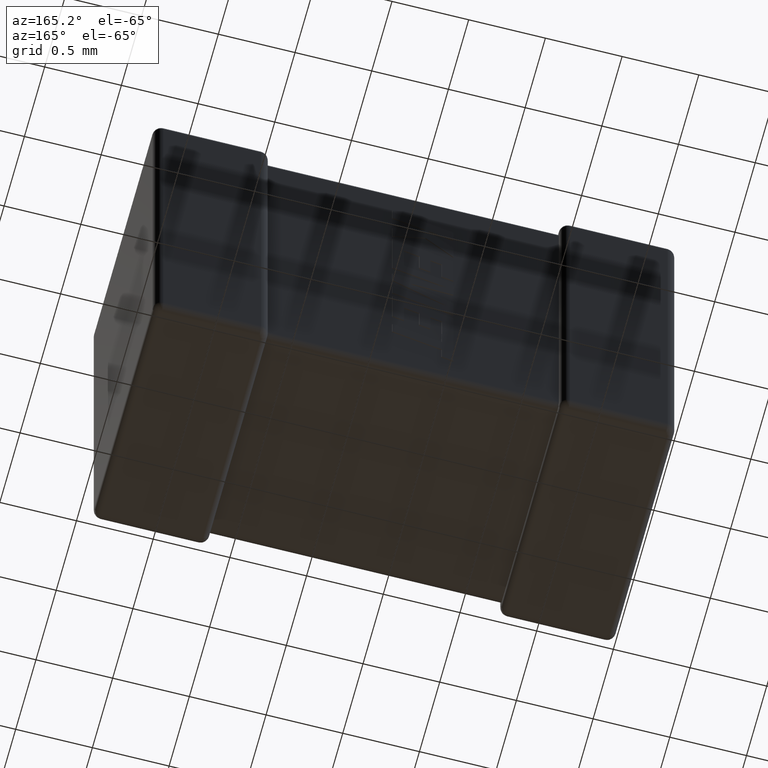
[diagram: clean part render]
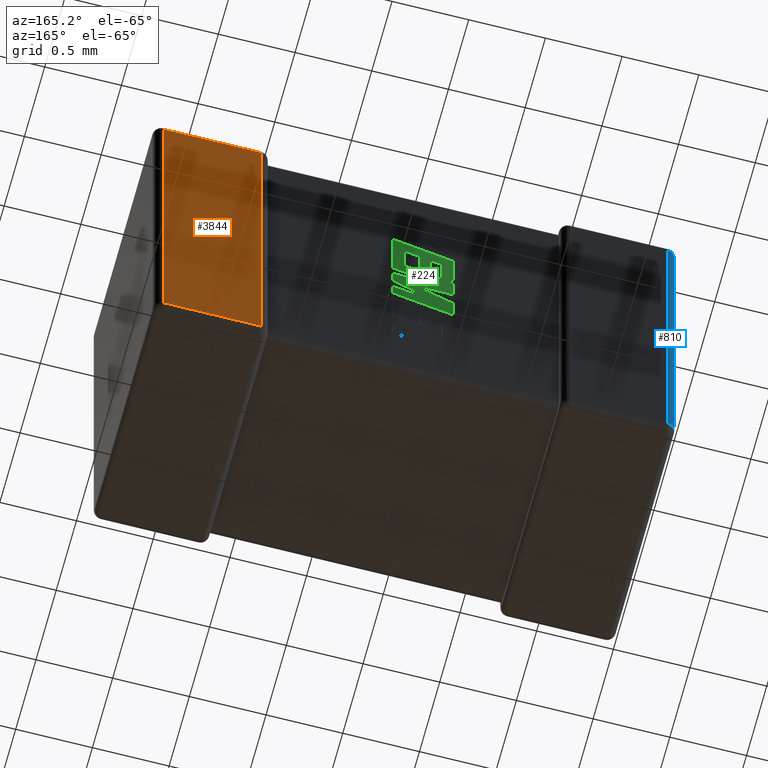
[diagram: same view with three faces highlighted in distinct colors, each labeled with its STEP entity id]
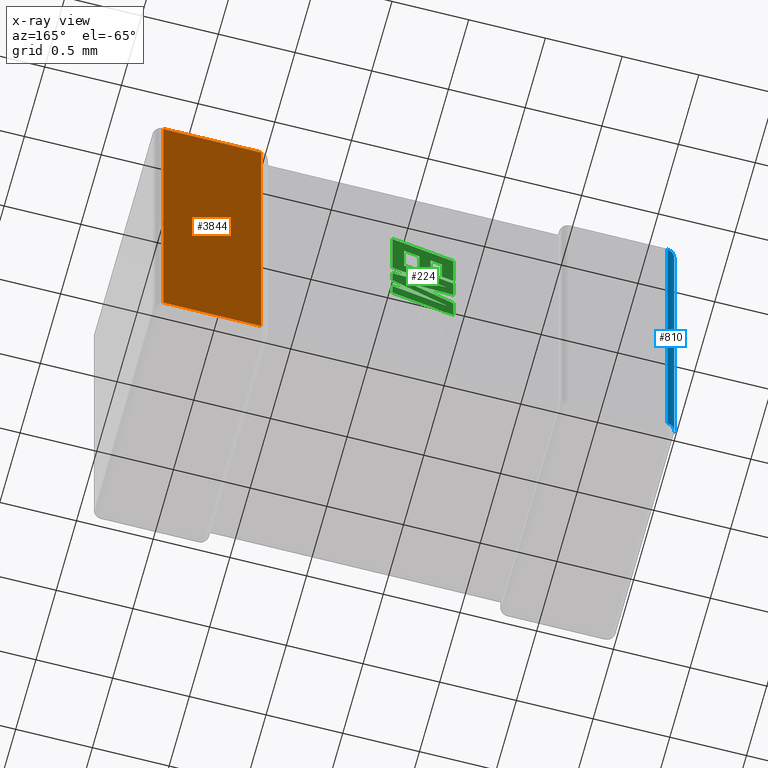
[diagram: x-ray of the same camera — body ghosted, the three highlighted faces saturated]
A machine part, auxiliary view with three faces highlighted in distinct colors.
The next image is the same camera in x-ray (body ghosted, the three faces saturated) — at least one of them is partly hidden behind the body in this view.
Their STEP definitions:

[orange] entity #3844 — the highlighted planar face has unit normal (0, -1, 0).
#448 = VECTOR ( 'NONE', #3174, 1000.000000000000000 ) ;
#488 = VECTOR ( 'NONE', #2281, 1000.000000000000000 ) ;
#535 = ORIENTED_EDGE ( 'NONE', *, *, #3697, .T. ) ;
#578 = ORIENTED_EDGE ( 'NONE', *, *, #4361, .T. ) ;
#594 = EDGE_LOOP ( 'NONE', ( #1127, #535, #640, #578 ) ) ;
#640 = ORIENTED_EDGE ( 'NONE', *, *, #3153, .T. ) ;
#685 = CARTESIAN_POINT ( 'NONE',  ( 2.706160000000000565, 1.549999999999999822, 0.000000000000000000 ) ) ;
#1005 = DIRECTION ( 'NONE',  ( -1.000000000000000000, 0.000000000000000000, 0.000000000000000000 ) ) ;
#1112 = LINE ( 'NONE', #685, #3146 ) ;
#1127 = ORIENTED_EDGE ( 'NONE', *, *, #1570, .T. ) ;
#1366 = VERTEX_POINT ( 'NONE', #4028 ) ;
#1472 = DIRECTION ( 'NONE',  ( 0.000000000000000000, -1.000000000000000000, 0.000000000000000000 ) ) ;
#1480 = AXIS2_PLACEMENT_3D ( 'NONE', #2906, #1472, #1726 ) ;
#1521 = LINE ( 'NONE', #4066, #488 ) ;
#1570 = EDGE_CURVE ( 'NONE', #3899, #1366, #2858, .T. ) ;
#1696 = VECTOR ( 'NONE', #1005, 1000.000000000000000 ) ;
#1726 = DIRECTION ( 'NONE',  ( 0.000000000000000000, -0.000000000000000000, -1.000000000000000000 ) ) ;
#2264 = LINE ( 'NONE', #3734, #1696 ) ;
#2281 = DIRECTION ( 'NONE',  ( -0.000000000000000000, -0.000000000000000000, -1.000000000000000000 ) ) ;
#2444 = DIRECTION ( 'NONE',  ( -0.000000000000000000, 0.000000000000000000, 1.000000000000000000 ) ) ;
#2450 = CARTESIAN_POINT ( 'NONE',  ( 2.706160000000000565, 1.549999999999999822, -0.05616000000000000159 ) ) ;
#2585 = VERTEX_POINT ( 'NONE', #2955 ) ;
#2858 = LINE ( 'NONE', #3543, #448 ) ;
#2893 = CARTESIAN_POINT ( 'NONE',  ( 2.706160000000000565, 1.549999999999999822, -2.643839999999999968 ) ) ;
#2906 = CARTESIAN_POINT ( 'NONE',  ( 3.400000000000000355, 1.549999999999999822, 0.000000000000000000 ) ) ;
#2955 = CARTESIAN_POINT ( 'NONE',  ( 3.343840000000000146, 1.549999999999999822, -2.643839999999999968 ) ) ;
#3104 = PLANE ( 'NONE',  #1480 ) ;
#3146 = VECTOR ( 'NONE', #2444, 1000.000000000000000 ) ;
#3153 = EDGE_CURVE ( 'NONE', #2585, #4127, #2264, .T. ) ;
#3174 = DIRECTION ( 'NONE',  ( 1.000000000000000000, -0.000000000000000000, -0.000000000000000000 ) ) ;
#3543 = CARTESIAN_POINT ( 'NONE',  ( 3.400000000000000355, 1.549999999999999822, -0.05616000000000000159 ) ) ;
#3697 = EDGE_CURVE ( 'NONE', #1366, #2585, #1521, .T. ) ;
#3734 = CARTESIAN_POINT ( 'NONE',  ( 3.400000000000000355, 1.549999999999999822, -2.643839999999999968 ) ) ;
#3844 = ADVANCED_FACE ( 'NONE', ( #4545 ), #3104, .F. ) ;
#3899 = VERTEX_POINT ( 'NONE', #2450 ) ;
#4028 = CARTESIAN_POINT ( 'NONE',  ( 3.343840000000000146, 1.549999999999999822, -0.05616000000000000159 ) ) ;
#4066 = CARTESIAN_POINT ( 'NONE',  ( 3.343840000000000146, 1.549999999999999822, 0.000000000000000000 ) ) ;
#4127 = VERTEX_POINT ( 'NONE', #2893 ) ;
#4361 = EDGE_CURVE ( 'NONE', #4127, #3899, #1112, .T. ) ;
#4545 = FACE_OUTER_BOUND ( 'NONE', #594, .T. ) ;

[blue] entity #810 — the highlighted cylindrical surface (edge-blend (fillet) strip) has radius 0.0562 mm, axis along (0, 0, -1).
#307 = CARTESIAN_POINT ( 'NONE',  ( 0.05615999999999997383, 1.549999999999999822, -2.643839999999999968 ) ) ;
#577 = EDGE_CURVE ( 'NONE', #4616, #2724, #1618, .T. ) ;
#580 = DIRECTION ( 'NONE',  ( -0.000000000000000000, 0.000000000000000000, -1.000000000000000000 ) ) ;
#689 = VERTEX_POINT ( 'NONE', #3541 ) ;
#779 = CIRCLE ( 'NONE', #3579, 0.05616000000000000159 ) ;
#810 = ADVANCED_FACE ( 'NONE', ( #4468 ), #1190, .T. ) ;
#812 = CARTESIAN_POINT ( 'NONE',  ( 0.000000000000000000, 1.493839999999999835, -0.05616000000000000159 ) ) ;
#828 = CARTESIAN_POINT ( 'NONE',  ( 0.05615999999999997383, 1.493839999999999835, 0.000000000000000000 ) ) ;
#923 = DIRECTION ( 'NONE',  ( 0.000000000000000000, -0.000000000000000000, 1.000000000000000000 ) ) ;
#934 = VECTOR ( 'NONE', #580, 1000.000000000000000 ) ;
#1100 = CARTESIAN_POINT ( 'NONE',  ( 0.05615999999999997383, 1.549999999999999822, 0.000000000000000000 ) ) ;
#1190 = CYLINDRICAL_SURFACE ( 'NONE', #2058, 0.05616000000000000159 ) ;
#1258 = DIRECTION ( 'NONE',  ( 0.000000000000000000, 0.000000000000000000, -1.000000000000000000 ) ) ;
#1618 = LINE ( 'NONE', #3083, #934 ) ;
#1683 = VECTOR ( 'NONE', #3252, 1000.000000000000000 ) ;
#1715 = EDGE_CURVE ( 'NONE', #689, #4616, #779, .T. ) ;
#2019 = ORIENTED_EDGE ( 'NONE', *, *, #2880, .F. ) ;
#2058 = AXIS2_PLACEMENT_3D ( 'NONE', #828, #2250, #2633 ) ;
#2150 = LINE ( 'NONE', #1100, #1683 ) ;
#2250 = DIRECTION ( 'NONE',  ( 0.000000000000000000, 0.000000000000000000, -1.000000000000000000 ) ) ;
#2308 = CARTESIAN_POINT ( 'NONE',  ( 0.05615999999999997383, 1.493839999999999835, -0.05616000000000000159 ) ) ;
#2399 = ORIENTED_EDGE ( 'NONE', *, *, #1715, .F. ) ;
#2559 = EDGE_CURVE ( 'NONE', #3876, #689, #2150, .T. ) ;
#2633 = DIRECTION ( 'NONE',  ( -1.000000000000000000, 0.000000000000000000, 0.000000000000000000 ) ) ;
#2724 = VERTEX_POINT ( 'NONE', #3776 ) ;
#2880 = EDGE_CURVE ( 'NONE', #2724, #3876, #3944, .T. ) ;
#3003 = DIRECTION ( 'NONE',  ( 1.000000000000000000, 0.000000000000000000, 0.000000000000000000 ) ) ;
#3018 = DIRECTION ( 'NONE',  ( -1.000000000000000000, 0.000000000000000000, 0.000000000000000000 ) ) ;
#3083 = CARTESIAN_POINT ( 'NONE',  ( 0.000000000000000000, 1.493839999999999835, -2.700000000000000178 ) ) ;
#3102 = EDGE_LOOP ( 'NONE', ( #2019, #3554, #2399, #3489 ) ) ;
#3229 = CARTESIAN_POINT ( 'NONE',  ( 0.05616000000000000159, 1.493839999999999835, -2.643839999999999968 ) ) ;
#3252 = DIRECTION ( 'NONE',  ( 0.000000000000000000, 0.000000000000000000, 1.000000000000000000 ) ) ;
#3489 = ORIENTED_EDGE ( 'NONE', *, *, #2559, .F. ) ;
#3541 = CARTESIAN_POINT ( 'NONE',  ( 0.05615999999999997383, 1.549999999999999822, -0.05616000000000000159 ) ) ;
#3554 = ORIENTED_EDGE ( 'NONE', *, *, #577, .F. ) ;
#3579 = AXIS2_PLACEMENT_3D ( 'NONE', #2308, #923, #3003 ) ;
#3776 = CARTESIAN_POINT ( 'NONE',  ( 0.000000000000000000, 1.493839999999999835, -2.643839999999999968 ) ) ;
#3876 = VERTEX_POINT ( 'NONE', #307 ) ;
#3944 = CIRCLE ( 'NONE', #4245, 0.05616000000000000159 ) ;
#4245 = AXIS2_PLACEMENT_3D ( 'NONE', #3229, #1258, #3018 ) ;
#4468 = FACE_OUTER_BOUND ( 'NONE', #3102, .T. ) ;
#4616 = VERTEX_POINT ( 'NONE', #812 ) ;

[green] entity #224 — the highlighted planar face has unit normal (0, -1, 0).
#3 = DIRECTION ( 'NONE',  ( 0.000000000000000000, 0.000000000000000000, 1.000000000000000000 ) ) ;
#15 = DIRECTION ( 'NONE',  ( 0.000000000000000000, 0.000000000000000000, -1.000000000000000000 ) ) ;
#46 = LINE ( 'NONE', #2936, #371 ) ;
#75 = CARTESIAN_POINT ( 'NONE',  ( 1.514623772849683414, 1.498839999999999728, -0.9688634990597322361 ) ) ;
#102 = ORIENTED_EDGE ( 'NONE', *, *, #2918, .T. ) ;
#113 = VECTOR ( 'NONE', #1181, 1000.000000000000227 ) ;
#122 = ORIENTED_EDGE ( 'NONE', *, *, #2349, .T. ) ;
#152 = EDGE_CURVE ( 'NONE', #2822, #3125, #2195, .T. ) ;
#159 = LINE ( 'NONE', #438, #1186 ) ;
#197 = VERTEX_POINT ( 'NONE', #383 ) ;
#204 = DIRECTION ( 'NONE',  ( 0.000000000000000000, -1.000000000000000000, 0.000000000000000000 ) ) ;
#224 = ADVANCED_FACE ( 'NONE', ( #1962 ), #2335, .F. ) ;
#226 = CARTESIAN_POINT ( 'NONE',  ( 1.836000000000006738, 1.498839999999999728, -1.378798892409895727 ) ) ;
#236 = EDGE_CURVE ( 'NONE', #3738, #329, #886, .T. ) ;
#249 = DIRECTION ( 'NONE',  ( 0.9610029908221285888, 0.000000000000000000, 0.2765379750249931101 ) ) ;
#250 = VECTOR ( 'NONE', #2419, 1000.000000000000227 ) ;
#270 = LINE ( 'NONE', #976, #1309 ) ;
#313 = EDGE_CURVE ( 'NONE', #3606, #2486, #3910, .T. ) ;
#329 = VERTEX_POINT ( 'NONE', #2408 ) ;
#334 = CARTESIAN_POINT ( 'NONE',  ( 1.588452647486523484, 1.498839999999999728, -0.9473805662053309540 ) ) ;
#371 = VECTOR ( 'NONE', #4435, 1000.000000000000000 ) ;
#380 = CARTESIAN_POINT ( 'NONE',  ( 1.439070229052686667, 1.498839999999999728, -1.171167553601791367 ) ) ;
#382 = VERTEX_POINT ( 'NONE', #1783 ) ;
#383 = CARTESIAN_POINT ( 'NONE',  ( 1.760483870298813924, 1.498839999999999728, -0.8983367201675375169 ) ) ;
#438 = CARTESIAN_POINT ( 'NONE',  ( 1.439070229052686667, 1.498839999999999728, -1.379797255758040908 ) ) ;
#468 = AXIS2_PLACEMENT_3D ( 'NONE', #2034, #204, #2644 ) ;
#521 = DIRECTION ( 'NONE',  ( 0.000000000000000000, 0.000000000000000000, -1.000000000000000000 ) ) ;
#550 = LINE ( 'NONE', #2718, #1842 ) ;
#569 = LINE ( 'NONE', #1933, #2196 ) ;
#596 = CARTESIAN_POINT ( 'NONE',  ( 1.482623858147629869, 1.498839999999999728, -1.292788712082211244 ) ) ;
#655 = LINE ( 'NONE', #226, #3360 ) ;
#676 = CARTESIAN_POINT ( 'NONE',  ( 1.836000000000006738, 1.498839999999999728, -1.191324096069252159 ) ) ;
#682 = CARTESIAN_POINT ( 'NONE',  ( 1.439070229052686667, 1.498839999999999728, -1.210758909182688026 ) ) ;
#690 = CARTESIAN_POINT ( 'NONE',  ( 1.661831346058584735, 1.498839999999999728, -0.9264455688293166125 ) ) ;
#714 = VECTOR ( 'NONE', #3142, 1000.000000000000114 ) ;
#882 = DIRECTION ( 'NONE',  ( 0.000000000000000000, 0.000000000000000000, 1.000000000000000000 ) ) ;
#886 = LINE ( 'NONE', #4193, #1155 ) ;
#900 = ORIENTED_EDGE ( 'NONE', *, *, #1268, .T. ) ;
#912 = CARTESIAN_POINT ( 'NONE',  ( 1.836000000000006738, 1.498839999999999728, -1.565145231322540464 ) ) ;
#962 = CARTESIAN_POINT ( 'NONE',  ( 1.439070229052686667, 1.498839999999999728, -0.8779291408648176587 ) ) ;
#969 = VERTEX_POINT ( 'NONE', #3896 ) ;
#976 = CARTESIAN_POINT ( 'NONE',  ( 1.439070229052686667, 1.498839999999999728, -1.171167553601791367 ) ) ;
#990 = EDGE_CURVE ( 'NONE', #2160, #2377, #1076, .T. ) ;
#1033 = VERTEX_POINT ( 'NONE', #75 ) ;
#1064 = CARTESIAN_POINT ( 'NONE',  ( 1.514623772849683414, 1.498839999999999728, -1.149708758874154357 ) ) ;
#1070 = VECTOR ( 'NONE', #1528, 1000.000000000000000 ) ;
#1076 = LINE ( 'NONE', #2157, #1761 ) ;
#1155 = VECTOR ( 'NONE', #1286, 1000.000000000000000 ) ;
#1181 = DIRECTION ( 'NONE',  ( -0.9610674221107078363, 0.000000000000000000, -0.2763139702539094689 ) ) ;
#1186 = VECTOR ( 'NONE', #2924, 1000.000000000000000 ) ;
#1187 = VERTEX_POINT ( 'NONE', #962 ) ;
#1268 = EDGE_CURVE ( 'NONE', #2763, #1033, #2865, .T. ) ;
#1286 = DIRECTION ( 'NONE',  ( 0.000000000000000000, 0.000000000000000000, 1.000000000000000000 ) ) ;
#1297 = EDGE_LOOP ( 'NONE', ( #3046, #2020, #3464, #2489, #2411, #2592, #1930, #3132, #102, #2071, #900, #4568, #4157, #4535, #4179, #3193, #2922, #3053, #2341, #122, #3151, #4670, #2027 ) ) ;
#1309 = VECTOR ( 'NONE', #882, 1000.000000000000000 ) ;
#1313 = LINE ( 'NONE', #2036, #3882 ) ;
#1327 = EDGE_CURVE ( 'NONE', #2377, #197, #46, .T. ) ;
#1337 = CARTESIAN_POINT ( 'NONE',  ( 1.760483870298813924, 1.498839999999999728, -1.118372642657951666 ) ) ;
#1353 = DIRECTION ( 'NONE',  ( -0.9611638845408968512, 0.000000000000000000, -0.2759782365590690567 ) ) ;
#1508 = CARTESIAN_POINT ( 'NONE',  ( 1.661831346058584735, 1.498839999999999728, -1.096788329672133688 ) ) ;
#1528 = DIRECTION ( 'NONE',  ( 0.000000000000000000, 0.000000000000000000, -1.000000000000000000 ) ) ;
#1567 = VERTEX_POINT ( 'NONE', #676 ) ;
#1610 = VERTEX_POINT ( 'NONE', #3695 ) ;
#1761 = VECTOR ( 'NONE', #1805, 1000.000000000000000 ) ;
#1781 = EDGE_CURVE ( 'NONE', #382, #1610, #3537, .T. ) ;
#1783 = CARTESIAN_POINT ( 'NONE',  ( 1.482623858147629869, 1.498839999999999728, -1.292788712082211244 ) ) ;
#1805 = DIRECTION ( 'NONE',  ( 0.9610853065513847993, 0.000000000000000000, 0.2762517575166369976 ) ) ;
#1818 = EDGE_CURVE ( 'NONE', #1610, #3468, #2401, .T. ) ;
#1842 = VECTOR ( 'NONE', #1353, 1000.000000000000000 ) ;
#1862 = VERTEX_POINT ( 'NONE', #3154 ) ;
#1930 = ORIENTED_EDGE ( 'NONE', *, *, #3903, .T. ) ;
#1933 = CARTESIAN_POINT ( 'NONE',  ( 1.661831346058584735, 1.498839999999999728, -1.096788329672133688 ) ) ;
#1962 = FACE_OUTER_BOUND ( 'NONE', #1297, .T. ) ;
#2020 = ORIENTED_EDGE ( 'NONE', *, *, #3224, .T. ) ;
#2027 = ORIENTED_EDGE ( 'NONE', *, *, #2305, .T. ) ;
#2034 = CARTESIAN_POINT ( 'NONE',  ( -0.8277549025643631264, 1.498839999999999728, 0.006109351898183301016 ) ) ;
#2036 = CARTESIAN_POINT ( 'NONE',  ( 1.439070229052686667, 1.498839999999999728, -0.8779291408648176587 ) ) ;
#2071 = ORIENTED_EDGE ( 'NONE', *, *, #2183, .T. ) ;
#2106 = CARTESIAN_POINT ( 'NONE',  ( 1.836000000000006738, 1.498839999999999728, -0.7637087314246739922 ) ) ;
#2143 = VECTOR ( 'NONE', #2344, 1000.000000000000227 ) ;
#2157 = CARTESIAN_POINT ( 'NONE',  ( 1.439070229052686667, 1.498839999999999728, -1.210758909182688026 ) ) ;
#2160 = VERTEX_POINT ( 'NONE', #682 ) ;
#2163 = DIRECTION ( 'NONE',  ( -0.9617234872620624708, 0.000000000000000000, -0.2740217765953968376 ) ) ;
#2183 = EDGE_CURVE ( 'NONE', #2853, #2763, #3237, .T. ) ;
#2193 = VERTEX_POINT ( 'NONE', #2106 ) ;
#2195 = LINE ( 'NONE', #2243, #1070 ) ;
#2196 = VECTOR ( 'NONE', #4518, 1000.000000000000114 ) ;
#2233 = CARTESIAN_POINT ( 'NONE',  ( 1.439070229052686667, 1.498839999999999728, -1.679265467217702534 ) ) ;
#2242 = VERTEX_POINT ( 'NONE', #1508 ) ;
#2243 = CARTESIAN_POINT ( 'NONE',  ( 1.836000000000006738, 1.498839999999999728, -1.464279240854371889 ) ) ;
#2305 = EDGE_CURVE ( 'NONE', #3125, #3738, #2964, .T. ) ;
#2335 = PLANE ( 'NONE',  #468 ) ;
#2341 = ORIENTED_EDGE ( 'NONE', *, *, #1818, .T. ) ;
#2344 = DIRECTION ( 'NONE',  ( -0.9985542843760948362, 0.000000000000000000, -0.05375259206908062498 ) ) ;
#2349 = EDGE_CURVE ( 'NONE', #3468, #1862, #655, .T. ) ;
#2353 = VECTOR ( 'NONE', #3168, 1000.000000000000000 ) ;
#2359 = LINE ( 'NONE', #3158, #4169 ) ;
#2367 = DIRECTION ( 'NONE',  ( -0.8843386665637650301, 0.000000000000000000, -0.4668459304955136502 ) ) ;
#2377 = VERTEX_POINT ( 'NONE', #1337 ) ;
#2401 = LINE ( 'NONE', #2782, #2353 ) ;
#2408 = CARTESIAN_POINT ( 'NONE',  ( 1.439070229052686667, 1.498839999999999728, -1.505174769309383320 ) ) ;
#2410 = CARTESIAN_POINT ( 'NONE',  ( 1.439070229052686667, 1.498839999999999728, -1.505174769309383320 ) ) ;
#2411 = ORIENTED_EDGE ( 'NONE', *, *, #990, .T. ) ;
#2419 = DIRECTION ( 'NONE',  ( 0.9984327301130250243, 0.000000000000000000, 0.05596501978067342647 ) ) ;
#2486 = VERTEX_POINT ( 'NONE', #380 ) ;
#2489 = ORIENTED_EDGE ( 'NONE', *, *, #4511, .T. ) ;
#2497 = DIRECTION ( 'NONE',  ( -0.9601763114327565019, 0.000000000000000000, -0.2793947940878393488 ) ) ;
#2592 = ORIENTED_EDGE ( 'NONE', *, *, #1327, .T. ) ;
#2644 = DIRECTION ( 'NONE',  ( 0.000000000000000000, 0.000000000000000000, -1.000000000000000000 ) ) ;
#2651 = VECTOR ( 'NONE', #15, 1000.000000000000000 ) ;
#2682 = EDGE_CURVE ( 'NONE', #2486, #1187, #270, .T. ) ;
#2705 = CARTESIAN_POINT ( 'NONE',  ( 1.722641957339287710, 1.498839999999999728, -1.364532471788447276 ) ) ;
#2718 = CARTESIAN_POINT ( 'NONE',  ( 1.836000000000006738, 1.498839999999999728, -1.191324096069252159 ) ) ;
#2730 = VECTOR ( 'NONE', #4655, 999.9999999999998863 ) ;
#2737 = EDGE_CURVE ( 'NONE', #1033, #3606, #2359, .T. ) ;
#2763 = VERTEX_POINT ( 'NONE', #334 ) ;
#2765 = EDGE_CURVE ( 'NONE', #3335, #2242, #4324, .T. ) ;
#2782 = CARTESIAN_POINT ( 'NONE',  ( 1.836000000000006738, 1.498839999999999728, -1.272980965228251771 ) ) ;
#2815 = CARTESIAN_POINT ( 'NONE',  ( 1.514623772849683414, 1.498839999999999728, -1.149708758874154357 ) ) ;
#2822 = VERTEX_POINT ( 'NONE', #4255 ) ;
#2835 = CARTESIAN_POINT ( 'NONE',  ( 1.760483870298813924, 1.498839999999999728, -0.8983367201675375169 ) ) ;
#2853 = VERTEX_POINT ( 'NONE', #3613 ) ;
#2865 = LINE ( 'NONE', #4304, #4460 ) ;
#2896 = VECTOR ( 'NONE', #3, 1000.000000000000000 ) ;
#2918 = EDGE_CURVE ( 'NONE', #2242, #2853, #569, .T. ) ;
#2922 = ORIENTED_EDGE ( 'NONE', *, *, #3557, .T. ) ;
#2924 = DIRECTION ( 'NONE',  ( 0.000000000000000000, 0.000000000000000000, 1.000000000000000000 ) ) ;
#2936 = CARTESIAN_POINT ( 'NONE',  ( 1.760483870298813924, 1.498839999999999728, -1.118372642657951666 ) ) ;
#2964 = LINE ( 'NONE', #4414, #113 ) ;
#2988 = CARTESIAN_POINT ( 'NONE',  ( 1.480922120208878701, 1.498839999999999728, -1.566245929904677148 ) ) ;
#3046 = ORIENTED_EDGE ( 'NONE', *, *, #236, .T. ) ;
#3053 = ORIENTED_EDGE ( 'NONE', *, *, #1781, .T. ) ;
#3075 = LINE ( 'NONE', #2705, #2143 ) ;
#3125 = VERTEX_POINT ( 'NONE', #912 ) ;
#3132 = ORIENTED_EDGE ( 'NONE', *, *, #2765, .T. ) ;
#3142 = DIRECTION ( 'NONE',  ( 0.8958676361826827250, 0.000000000000000000, 0.4443210308329466063 ) ) ;
#3151 = ORIENTED_EDGE ( 'NONE', *, *, #3414, .T. ) ;
#3154 = CARTESIAN_POINT ( 'NONE',  ( 1.480922120208878701, 1.498839999999999728, -1.566245929904677148 ) ) ;
#3158 = CARTESIAN_POINT ( 'NONE',  ( 1.514623772849683414, 1.498839999999999728, -0.9688634990597322361 ) ) ;
#3168 = DIRECTION ( 'NONE',  ( 0.000000000000000000, 0.000000000000000000, -1.000000000000000000 ) ) ;
#3193 = ORIENTED_EDGE ( 'NONE', *, *, #4355, .T. ) ;
#3224 = EDGE_CURVE ( 'NONE', #329, #969, #4553, .T. ) ;
#3234 = EDGE_CURVE ( 'NONE', #1187, #2193, #1313, .T. ) ;
#3237 = LINE ( 'NONE', #3662, #2896 ) ;
#3335 = VERTEX_POINT ( 'NONE', #3931 ) ;
#3360 = VECTOR ( 'NONE', #2367, 1000.000000000000114 ) ;
#3414 = EDGE_CURVE ( 'NONE', #1862, #2822, #4458, .T. ) ;
#3461 = CARTESIAN_POINT ( 'NONE',  ( 1.439070229052686667, 1.498839999999999728, -1.379797255758040908 ) ) ;
#3464 = ORIENTED_EDGE ( 'NONE', *, *, #4122, .T. ) ;
#3468 = VERTEX_POINT ( 'NONE', #4407 ) ;
#3537 = LINE ( 'NONE', #596, #250 ) ;
#3557 = EDGE_CURVE ( 'NONE', #1567, #382, #550, .T. ) ;
#3597 = VECTOR ( 'NONE', #3778, 999.9999999999998863 ) ;
#3606 = VERTEX_POINT ( 'NONE', #1064 ) ;
#3613 = CARTESIAN_POINT ( 'NONE',  ( 1.588452647486523484, 1.498839999999999728, -1.117747465174933730 ) ) ;
#3662 = CARTESIAN_POINT ( 'NONE',  ( 1.588452647486523484, 1.498839999999999728, -1.117747465174933730 ) ) ;
#3695 = CARTESIAN_POINT ( 'NONE',  ( 1.836000000000006738, 1.498839999999999728, -1.272980965228251771 ) ) ;
#3738 = VERTEX_POINT ( 'NONE', #2233 ) ;
#3778 = DIRECTION ( 'NONE',  ( 0.9611542233438713501, 0.000000000000000000, 0.2760118818968482213 ) ) ;
#3880 = LINE ( 'NONE', #2835, #4654 ) ;
#3882 = VECTOR ( 'NONE', #249, 1000.000000000000114 ) ;
#3896 = CARTESIAN_POINT ( 'NONE',  ( 1.722641957339287710, 1.498839999999999728, -1.364532471788447276 ) ) ;
#3903 = EDGE_CURVE ( 'NONE', #197, #3335, #3880, .T. ) ;
#3910 = LINE ( 'NONE', #2815, #2730 ) ;
#3916 = DIRECTION ( 'NONE',  ( 0.000000000000000000, 0.000000000000000000, -1.000000000000000000 ) ) ;
#3931 = CARTESIAN_POINT ( 'NONE',  ( 1.661831346058584735, 1.498839999999999728, -0.9264455688293166125 ) ) ;
#4044 = VECTOR ( 'NONE', #3916, 1000.000000000000000 ) ;
#4122 = EDGE_CURVE ( 'NONE', #969, #4586, #3075, .T. ) ;
#4157 = ORIENTED_EDGE ( 'NONE', *, *, #313, .T. ) ;
#4169 = VECTOR ( 'NONE', #521, 1000.000000000000000 ) ;
#4179 = ORIENTED_EDGE ( 'NONE', *, *, #3234, .T. ) ;
#4193 = CARTESIAN_POINT ( 'NONE',  ( 1.439070229052686667, 1.498839999999999728, -1.679265467217702534 ) ) ;
#4255 = CARTESIAN_POINT ( 'NONE',  ( 1.836000000000006738, 1.498839999999999728, -1.464279240854371889 ) ) ;
#4304 = CARTESIAN_POINT ( 'NONE',  ( 1.588452647486523484, 1.498839999999999728, -0.9473805662053309540 ) ) ;
#4311 = CARTESIAN_POINT ( 'NONE',  ( 1.836000000000006738, 1.498839999999999728, -0.7637087314246739922 ) ) ;
#4324 = LINE ( 'NONE', #690, #2651 ) ;
#4344 = LINE ( 'NONE', #4311, #4044 ) ;
#4355 = EDGE_CURVE ( 'NONE', #2193, #1567, #4344, .T. ) ;
#4407 = CARTESIAN_POINT ( 'NONE',  ( 1.836000000000006738, 1.498839999999999728, -1.378798892409895727 ) ) ;
#4414 = CARTESIAN_POINT ( 'NONE',  ( 1.836000000000006738, 1.498839999999999728, -1.565145231322540464 ) ) ;
#4435 = DIRECTION ( 'NONE',  ( 0.000000000000000000, 0.000000000000000000, 1.000000000000000000 ) ) ;
#4458 = LINE ( 'NONE', #2988, #3597 ) ;
#4460 = VECTOR ( 'NONE', #2497, 1000.000000000000227 ) ;
#4511 = EDGE_CURVE ( 'NONE', #4586, #2160, #159, .T. ) ;
#4518 = DIRECTION ( 'NONE',  ( -0.9615454294334447871, 0.000000000000000000, -0.2746459304917006072 ) ) ;
#4535 = ORIENTED_EDGE ( 'NONE', *, *, #2682, .T. ) ;
#4553 = LINE ( 'NONE', #2410, #714 ) ;
#4568 = ORIENTED_EDGE ( 'NONE', *, *, #2737, .T. ) ;
#4586 = VERTEX_POINT ( 'NONE', #3461 ) ;
#4654 = VECTOR ( 'NONE', #2163, 1000.000000000000000 ) ;
#4655 = DIRECTION ( 'NONE',  ( -0.9619530280415479195, 0.000000000000000000, -0.2732148821746301914 ) ) ;
#4670 = ORIENTED_EDGE ( 'NONE', *, *, #152, .T. ) ;